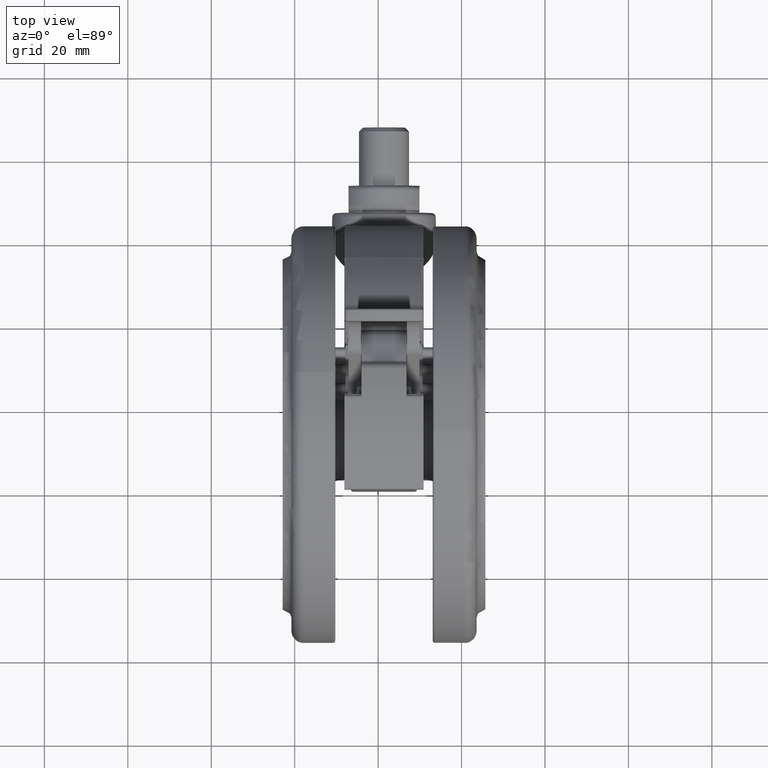
[diagram: clean part render]
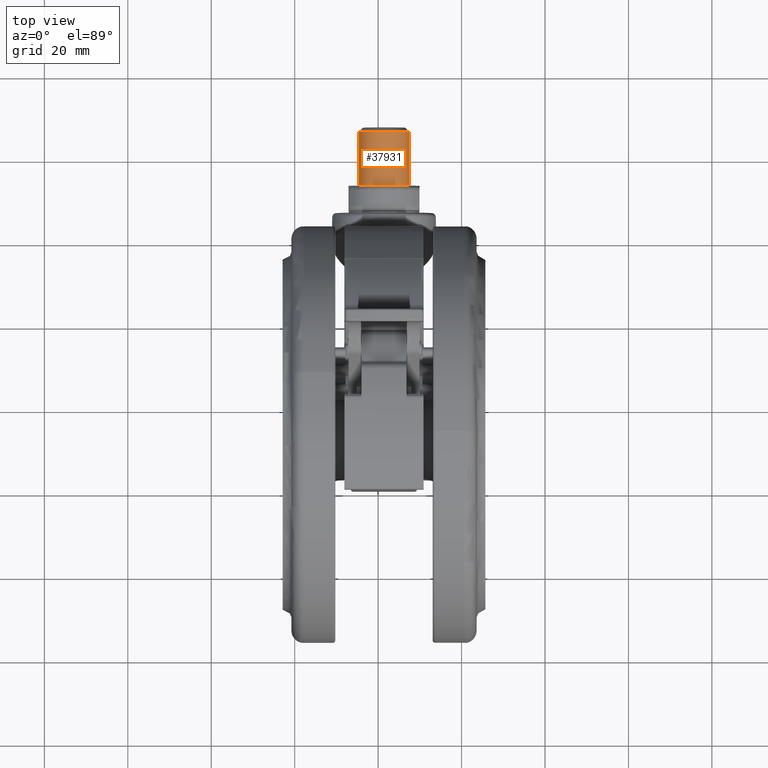
[diagram: same view with one face highlighted and labeled with its STEP entity id]
A machine part, top view. The second image highlights one B-rep face of the part: STEP entity #37931.
In plain terms, the highlighted cylindrical surface (edge-blend (fillet) strip) has radius 6 mm, axis along (0, -1, -0).
Its self-contained STEP definition (entity closure, byte-faithful):
#2616 = CARTESIAN_POINT ( 'NONE',  ( -23.99999999999998900, -74.00000000000000000, -30.29999999999994400 ) ) ;
#2758 = AXIS2_PLACEMENT_3D ( 'NONE', #45218, #48825, #22592 ) ;
#3624 = CYLINDRICAL_SURFACE ( 'NONE', #2758, 5.999999999999998200 ) ;
#4246 = EDGE_CURVE ( 'NONE', #14885, #7255, #25211, .T. ) ;
#4445 = CARTESIAN_POINT ( 'NONE',  ( -23.99999999999999300, -59.99999999999999300, -24.29999999999994700 ) ) ;
#4579 = ORIENTED_EDGE ( 'NONE', *, *, #47718, .T. ) ;
#5569 = VECTOR ( 'NONE', #47983, 1000.000000000000000 ) ;
#7255 = VERTEX_POINT ( 'NONE', #37837 ) ;
#8255 = DIRECTION ( 'NONE',  ( 0.0000000000000000000, 0.0000000000000000000, -1.000000000000000000 ) ) ;
#9158 = CARTESIAN_POINT ( 'NONE',  ( -23.99999999999999300, -59.99999999999999300, -30.29999999999994400 ) ) ;
#10659 = VERTEX_POINT ( 'NONE', #15241 ) ;
#13966 = VECTOR ( 'NONE', #41042, 1000.000000000000000 ) ;
#14885 = VERTEX_POINT ( 'NONE', #39535 ) ;
#15241 = CARTESIAN_POINT ( 'NONE',  ( -23.99999999999998900, -73.04999999999998300, -30.29999999999995100 ) ) ;
#18638 = DIRECTION ( 'NONE',  ( -2.360897160001558300E-016, 1.000000000000000000, -6.688773330916236600E-017 ) ) ;
#22592 = DIRECTION ( 'NONE',  ( 0.0000000000000000000, 0.0000000000000000000, 1.000000000000000000 ) ) ;
#24723 = EDGE_CURVE ( 'NONE', #46452, #7255, #28879, .T. ) ;
#25211 = LINE ( 'NONE', #33602, #13966 ) ;
#25689 = LINE ( 'NONE', #2616, #5569 ) ;
#28531 = AXIS2_PLACEMENT_3D ( 'NONE', #4445, #30885, #8255 ) ;
#28879 = CIRCLE ( 'NONE', #28531, 5.999999999999998200 ) ;
#29428 = EDGE_LOOP ( 'NONE', ( #38398, #4579, #38600, #39312 ) ) ;
#30885 = DIRECTION ( 'NONE',  ( 2.360897160001558300E-016, -1.000000000000000000, 6.688773330916236600E-017 ) ) ;
#31006 = AXIS2_PLACEMENT_3D ( 'NONE', #41272, #18638, #45068 ) ;
#33602 = CARTESIAN_POINT ( 'NONE',  ( -23.99999999999998900, -74.00000000000000000, -18.29999999999994700 ) ) ;
#37837 = CARTESIAN_POINT ( 'NONE',  ( -23.99999999999999300, -59.99999999999999300, -18.29999999999994700 ) ) ;
#37931 = ADVANCED_FACE ( 'NONE', ( #43803 ), #3624, .T. ) ;
#38398 = ORIENTED_EDGE ( 'NONE', *, *, #47271, .T. ) ;
#38600 = ORIENTED_EDGE ( 'NONE', *, *, #24723, .T. ) ;
#39312 = ORIENTED_EDGE ( 'NONE', *, *, #4246, .F. ) ;
#39535 = CARTESIAN_POINT ( 'NONE',  ( -23.99999999999998900, -73.04999999999998300, -18.29999999999994000 ) ) ;
#41042 = DIRECTION ( 'NONE',  ( -2.360897160001558300E-016, 1.000000000000000000, -6.688773330916236600E-017 ) ) ;
#41272 = CARTESIAN_POINT ( 'NONE',  ( -23.99999999999998900, -73.04999999999998300, -24.29999999999994700 ) ) ;
#43803 = FACE_OUTER_BOUND ( 'NONE', #29428, .T. ) ;
#43951 = CIRCLE ( 'NONE', #31006, 5.999999999999998200 ) ;
#45068 = DIRECTION ( 'NONE',  ( 0.0000000000000000000, 0.0000000000000000000, -1.000000000000000000 ) ) ;
#45218 = CARTESIAN_POINT ( 'NONE',  ( -23.99999999999998900, -74.00000000000000000, -24.29999999999994700 ) ) ;
#46452 = VERTEX_POINT ( 'NONE', #9158 ) ;
#47271 = EDGE_CURVE ( 'NONE', #14885, #10659, #43951, .T. ) ;
#47718 = EDGE_CURVE ( 'NONE', #10659, #46452, #25689, .T. ) ;
#47983 = DIRECTION ( 'NONE',  ( -2.360897160001558300E-016, 1.000000000000000000, -6.688773330916236600E-017 ) ) ;
#48825 = DIRECTION ( 'NONE',  ( -2.360897160001558300E-016, 1.000000000000000000, -6.688773330916236600E-017 ) ) ;